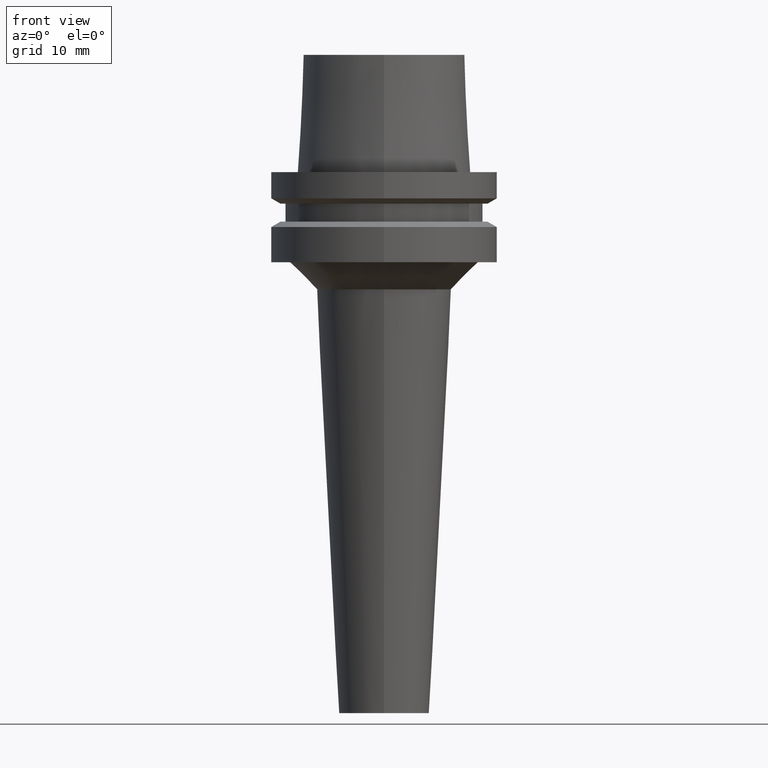
[diagram: clean part render]
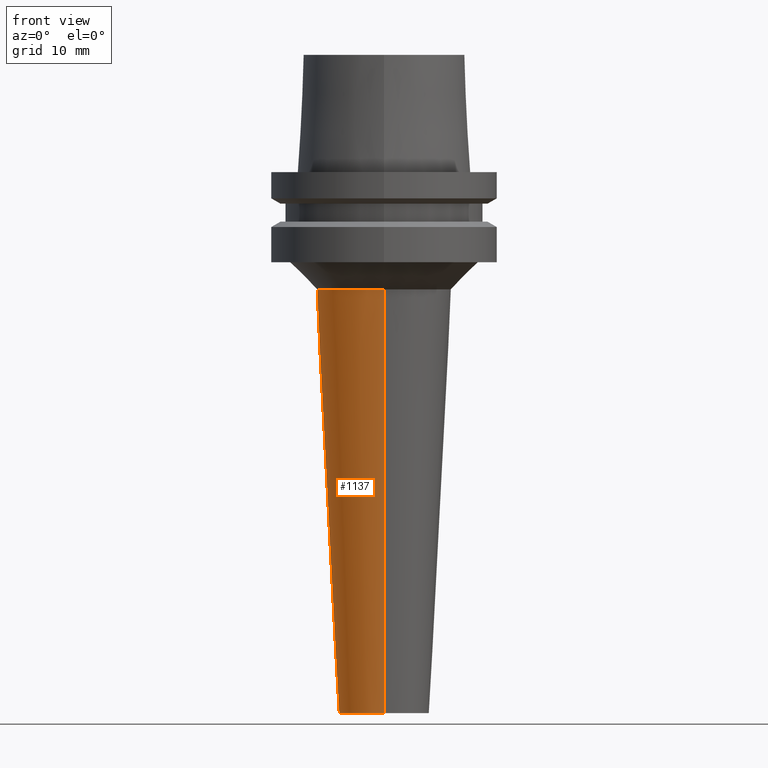
[diagram: same view with one face highlighted and labeled with its STEP entity id]
A machine part, front view. The second image highlights one B-rep face of the part: STEP entity #1137.
In plain terms, the highlighted conical surface has half-angle 3 deg.
Its self-contained STEP definition (entity closure, byte-faithful):
#301=CARTESIAN_POINT('',(0.E0,1.083812417245E-14,-1.3E1));
#302=DIRECTION('',(0.E0,0.E0,-1.E0));
#303=DIRECTION('',(0.E0,-1.E0,0.E0));
#304=AXIS2_PLACEMENT_3D('',#301,#302,#303);
#316=DIRECTION('',(0.E0,-5.233595624295E-2,-9.986295347546E-1));
#317=VECTOR('',#316,4.706450026190E1);
#318=CARTESIAN_POINT('',(0.E0,7.463165626303E0,-1.3E1));
#319=LINE('',#318,#317);
#331=DIRECTION('',(0.E0,5.233595624295E-2,-9.986295347546E-1));
#332=VECTOR('',#331,4.706450026190E1);
#333=CARTESIAN_POINT('',(0.E0,-7.463165626303E0,-1.3E1));
#334=LINE('',#333,#332);
#346=CARTESIAN_POINT('',(0.E0,0.E0,-6.E1));
#347=DIRECTION('',(0.E0,0.E0,1.E0));
#348=DIRECTION('',(0.E0,1.E0,0.E0));
#349=AXIS2_PLACEMENT_3D('',#346,#347,#348);
#784=CARTESIAN_POINT('',(0.E0,-5.E0,-6.E1));
#785=CARTESIAN_POINT('',(0.E0,5.E0,-6.E1));
#786=VERTEX_POINT('',#784);
#787=VERTEX_POINT('',#785);
#788=CARTESIAN_POINT('',(0.E0,7.463165626303E0,-1.3E1));
#789=VERTEX_POINT('',#788);
#790=CARTESIAN_POINT('',(0.E0,-7.463165626303E0,-1.3E1));
#791=VERTEX_POINT('',#790);
#1125=CARTESIAN_POINT('',(0.E0,0.E0,-3.65E1));
#1126=DIRECTION('',(0.E0,0.E0,1.E0));
#1127=DIRECTION('',(0.E0,1.E0,0.E0));
#1128=AXIS2_PLACEMENT_3D('',#1125,#1126,#1127);
#1129=CONICAL_SURFACE('',#1128,6.231582813151E0,3.E0);
#1130=ORIENTED_EDGE('',*,*,#1115,.F.);
#1131=ORIENTED_EDGE('',*,*,#1092,.F.);
#1132=ORIENTED_EDGE('',*,*,#1119,.T.);
#1134=ORIENTED_EDGE('',*,*,#1133,.F.);
#1135=EDGE_LOOP('',(#1130,#1131,#1132,#1134));
#1136=FACE_OUTER_BOUND('',#1135,.F.);
#305=CIRCLE('',#304,7.463165626303E0);
#350=CIRCLE('',#349,5.E0);
#1092=EDGE_CURVE('',#791,#789,#305,.T.);
#1115=EDGE_CURVE('',#789,#787,#319,.T.);
#1119=EDGE_CURVE('',#791,#786,#334,.T.);
#1133=EDGE_CURVE('',#787,#786,#350,.T.);
#1137=ADVANCED_FACE('',(#1136),#1129,.T.);